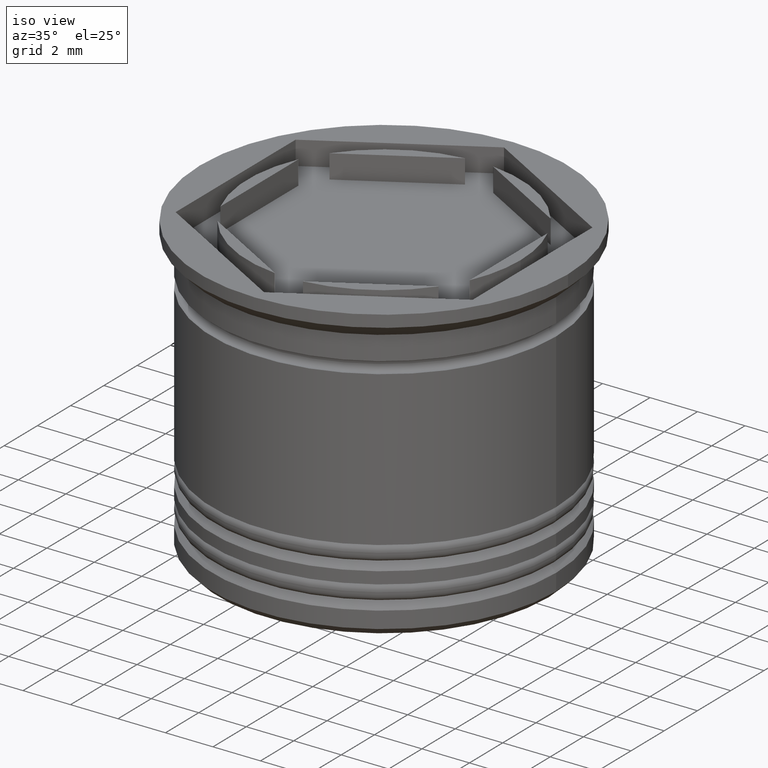
[diagram: clean part render]
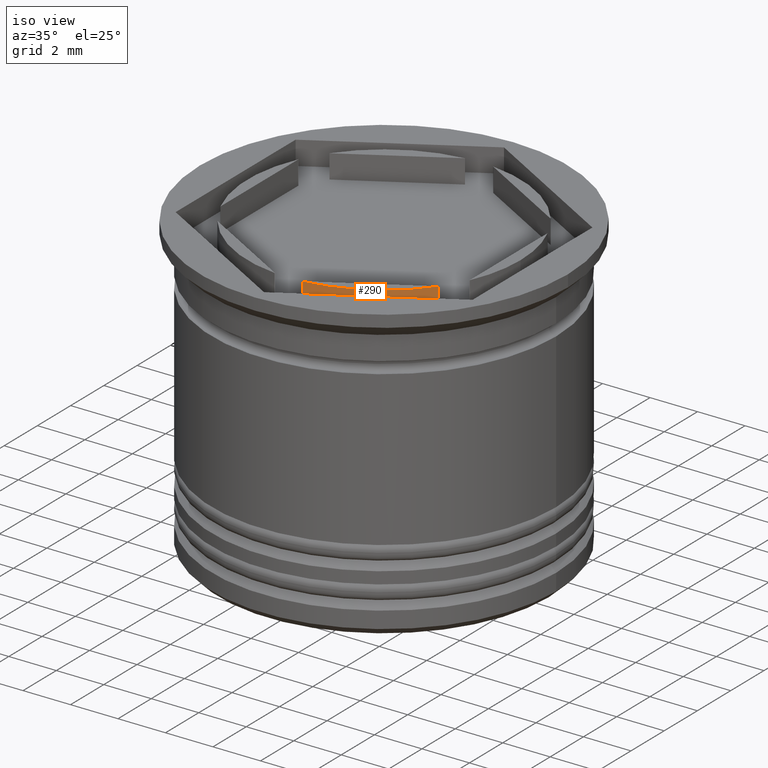
[diagram: same view with one face highlighted and labeled with its STEP entity id]
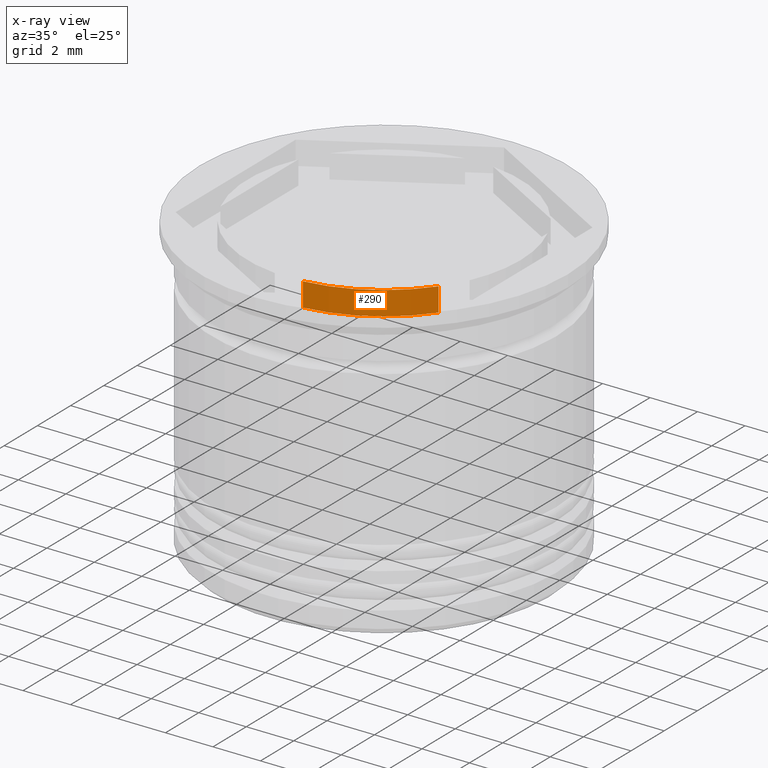
[diagram: x-ray of the same camera — body ghosted, the highlighted face saturated]
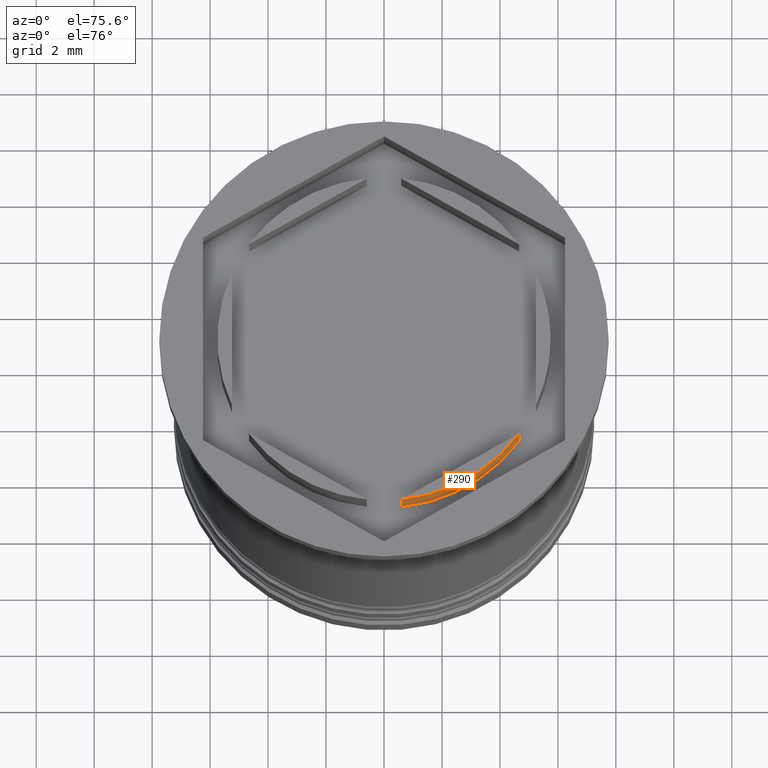
[diagram: same view with one face highlighted and labeled with its STEP entity id]
A machine part, iso view. The second image highlights one B-rep face of the part: STEP entity #290.
The next image is the same camera in x-ray: the body ghosted, the highlighted face saturated — about 0% of this face is hidden behind the body in this view.
A second angle (auxiliary view) of the same face is appended — the face is thin or edge-on in the first view.
In plain terms, the highlighted cylindrical surface (partial cylindrical patch) has radius 5.75 mm, axis along (-0, -0, 1).
Its self-contained STEP definition (entity closure, byte-faithful):
#59 = ORIENTED_EDGE ( 'NONE', *, *, #481, .F. ) ;
#94 = DIRECTION ( 'NONE',  ( 1.000000000000000000, 0.000000000000000000, 0.000000000000000000 ) ) ;
#99 = CARTESIAN_POINT ( 'NONE',  ( 4.656009601158991096, -3.374029429912444478, -1.000000000000000000 ) ) ;
#105 = AXIS2_PLACEMENT_3D ( 'NONE', #1697, #908, #1518 ) ;
#159 = CARTESIAN_POINT ( 'NONE',  ( 0.5939903988410097924, -5.719237309824159787, -1.000000000000000888 ) ) ;
#224 = DIRECTION ( 'NONE',  ( -0.000000000000000000, -0.000000000000000000, 1.000000000000000000 ) ) ;
#265 = CARTESIAN_POINT ( 'NONE',  ( 0.000000000000000000, 0.000000000000000000, -1.000000000000000000 ) ) ;
#290 = ADVANCED_FACE ( 'NONE', ( #1791 ), #1631, .T. ) ;
#315 = DIRECTION ( 'NONE',  ( 1.000000000000000000, 0.000000000000000000, 0.000000000000000000 ) ) ;
#385 = DIRECTION ( 'NONE',  ( 0.000000000000000000, 0.000000000000000000, -1.000000000000000000 ) ) ;
#461 = CARTESIAN_POINT ( 'NONE',  ( 0.5939903988410097924, -5.719237309824159787, 0.000000000000000000 ) ) ;
#481 = EDGE_CURVE ( 'NONE', #878, #1265, #1552, .T. ) ;
#483 = CARTESIAN_POINT ( 'NONE',  ( 0.5939903988410096813, -5.719237309824159787, -1.000000000000000000 ) ) ;
#510 = ORIENTED_EDGE ( 'NONE', *, *, #1919, .T. ) ;
#582 = EDGE_CURVE ( 'NONE', #1006, #878, #1131, .T. ) ;
#596 = VECTOR ( 'NONE', #385, 1000.000000000000000 ) ;
#627 = CARTESIAN_POINT ( 'NONE',  ( 0.000000000000000000, 0.000000000000000000, -1.000000000000000000 ) ) ;
#703 = EDGE_CURVE ( 'NONE', #1265, #1885, #1148, .T. ) ;
#732 = AXIS2_PLACEMENT_3D ( 'NONE', #265, #224, #94 ) ;
#769 = CIRCLE ( 'NONE', #1884, 5.750000000000000000 ) ;
#859 = ORIENTED_EDGE ( 'NONE', *, *, #703, .F. ) ;
#878 = VERTEX_POINT ( 'NONE', #461 ) ;
#908 = DIRECTION ( 'NONE',  ( -0.000000000000000000, 0.000000000000000000, 1.000000000000000000 ) ) ;
#1006 = VERTEX_POINT ( 'NONE', #159 ) ;
#1131 = LINE ( 'NONE', #483, #1906 ) ;
#1148 = LINE ( 'NONE', #99, #596 ) ;
#1235 = CARTESIAN_POINT ( 'NONE',  ( 4.656009601158991096, -3.374029429912444478, 0.000000000000000000 ) ) ;
#1260 = CARTESIAN_POINT ( 'NONE',  ( 4.656009601158991096, -3.374029429912444478, -1.000000000000000888 ) ) ;
#1265 = VERTEX_POINT ( 'NONE', #1235 ) ;
#1518 = DIRECTION ( 'NONE',  ( 1.000000000000000000, 0.000000000000000000, 0.000000000000000000 ) ) ;
#1540 = DIRECTION ( 'NONE',  ( -0.000000000000000000, 0.000000000000000000, 1.000000000000000000 ) ) ;
#1552 = CIRCLE ( 'NONE', #105, 5.750000000000000000 ) ;
#1631 = CYLINDRICAL_SURFACE ( 'NONE', #732, 5.750000000000000000 ) ;
#1672 = ORIENTED_EDGE ( 'NONE', *, *, #582, .F. ) ;
#1697 = CARTESIAN_POINT ( 'NONE',  ( 0.000000000000000000, 0.000000000000000000, 0.000000000000000000 ) ) ;
#1791 = FACE_OUTER_BOUND ( 'NONE', #1806, .T. ) ;
#1806 = EDGE_LOOP ( 'NONE', ( #859, #59, #1672, #510 ) ) ;
#1874 = DIRECTION ( 'NONE',  ( -0.000000000000000000, -0.000000000000000000, 1.000000000000000000 ) ) ;
#1884 = AXIS2_PLACEMENT_3D ( 'NONE', #627, #1540, #315 ) ;
#1885 = VERTEX_POINT ( 'NONE', #1260 ) ;
#1906 = VECTOR ( 'NONE', #1874, 1000.000000000000000 ) ;
#1919 = EDGE_CURVE ( 'NONE', #1006, #1885, #769, .T. ) ;